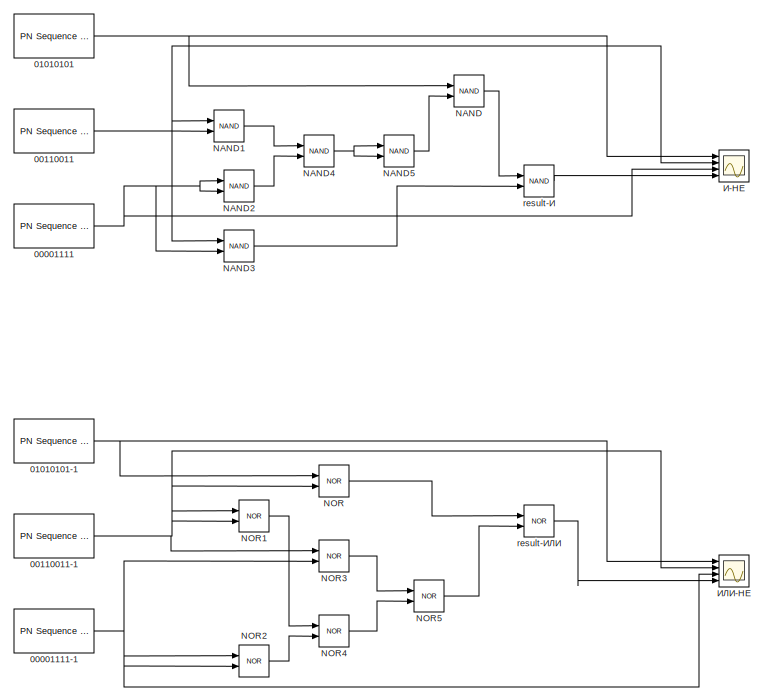
[diagram: root canvas - part 1/2, left side, full height]
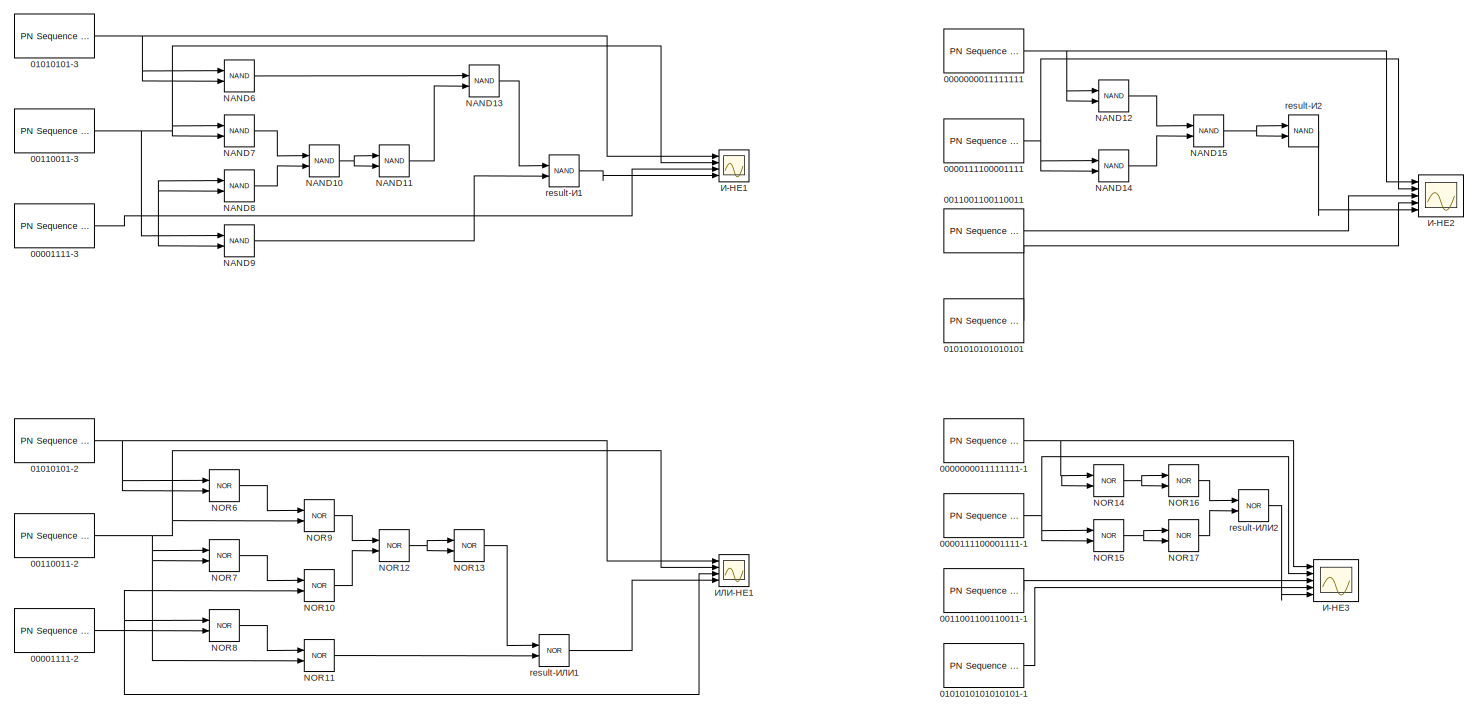
[diagram: root canvas - part 2/2, right side, full height]
MODEL slx_3a0d1bac1cae
KIND model
CONFIG AbsTol = auto
CONFIG EnableMultiTasking = off
CONFIG FixedStep = auto
CONFIG MaxStep = auto
CONFIG MinStep = auto
CONFIG RelTol = 1e-3
CONFIG SampleTimeConstraint = Unconstrained
CONFIG Solver = VariableStepAuto
CONFIG SolverName = VariableStepAuto
CONFIG StartTime = 0.0
CONFIG StopTime = 16
BLOCK [Reference] 0000000011111111  REF=commseqgen3/PN Sequence
Generator
  Ports = [0, 1]
  SourceBlock = commseqgen3/PN Sequence\nGenerator
  SourceProductBaseCode = CM
  SourceType = PN Sequence Generator
BLOCK [Reference] 0000000011111111-1  REF=commseqgen3/PN Sequence
Generator
  Ports = [0, 1]
  SourceBlock = commseqgen3/PN Sequence\nGenerator
  SourceProductBaseCode = CM
  SourceType = PN Sequence Generator
BLOCK [Reference] 00001111  REF=commseqgen3/PN Sequence
Generator
  Ports = [0, 1]
  SourceBlock = commseqgen3/PN Sequence\nGenerator
  SourceProductBaseCode = CM
  SourceType = PN Sequence Generator
BLOCK [Reference] 00001111-1  REF=commseqgen3/PN Sequence
Generator
  Ports = [0, 1]
  SourceBlock = commseqgen3/PN Sequence\nGenerator
  SourceProductBaseCode = CM
  SourceType = PN Sequence Generator
BLOCK [Reference] 00001111-2  REF=commseqgen3/PN Sequence
Generator
  Ports = [0, 1]
  SourceBlock = commseqgen3/PN Sequence\nGenerator
  SourceProductBaseCode = CM
  SourceType = PN Sequence Generator
BLOCK [Reference] 00001111-3  REF=commseqgen3/PN Sequence
Generator
  Ports = [0, 1]
  SourceBlock = commseqgen3/PN Sequence\nGenerator
  SourceProductBaseCode = CM
  SourceType = PN Sequence Generator
BLOCK [Reference] 0000111100001111  REF=commseqgen3/PN Sequence
Generator
  Ports = [0, 1]
  SourceBlock = commseqgen3/PN Sequence\nGenerator
  SourceProductBaseCode = CM
  SourceType = PN Sequence Generator
BLOCK [Reference] 0000111100001111-1  REF=commseqgen3/PN Sequence
Generator
  Ports = [0, 1]
  SourceBlock = commseqgen3/PN Sequence\nGenerator
  SourceProductBaseCode = CM
  SourceType = PN Sequence Generator
BLOCK [Reference] 00110011  REF=commseqgen3/PN Sequence
Generator
  Ports = [0, 1]
  SourceBlock = commseqgen3/PN Sequence\nGenerator
  SourceProductBaseCode = CM
  SourceType = PN Sequence Generator
BLOCK [Reference] 00110011-1  REF=commseqgen3/PN Sequence
Generator
  Ports = [0, 1]
  SourceBlock = commseqgen3/PN Sequence\nGenerator
  SourceProductBaseCode = CM
  SourceType = PN Sequence Generator
BLOCK [Reference] 00110011-2  REF=commseqgen3/PN Sequence
Generator
  Ports = [0, 1]
  SourceBlock = commseqgen3/PN Sequence\nGenerator
  SourceProductBaseCode = CM
  SourceType = PN Sequence Generator
BLOCK [Reference] 00110011-3  REF=commseqgen3/PN Sequence
Generator
  Ports = [0, 1]
  SourceBlock = commseqgen3/PN Sequence\nGenerator
  SourceProductBaseCode = CM
  SourceType = PN Sequence Generator
BLOCK [Reference] 0011001100110011  REF=commseqgen3/PN Sequence
Generator
  Ports = [0, 1]
  SourceBlock = commseqgen3/PN Sequence\nGenerator
  SourceProductBaseCode = CM
  SourceType = PN Sequence Generator
BLOCK [Reference] 0011001100110011-1  REF=commseqgen3/PN Sequence
Generator
  Ports = [0, 1]
  SourceBlock = commseqgen3/PN Sequence\nGenerator
  SourceProductBaseCode = CM
  SourceType = PN Sequence Generator
BLOCK [Reference] 01010101  REF=commseqgen3/PN Sequence
Generator
  Ports = [0, 1]
  SourceBlock = commseqgen3/PN Sequence\nGenerator
  SourceProductBaseCode = CM
  SourceType = PN Sequence Generator
BLOCK [Reference] 01010101-1  REF=commseqgen3/PN Sequence
Generator
  Ports = [0, 1]
  SourceBlock = commseqgen3/PN Sequence\nGenerator
  SourceProductBaseCode = CM
  SourceType = PN Sequence Generator
BLOCK [Reference] 01010101-2  REF=commseqgen3/PN Sequence
Generator
  Ports = [0, 1]
  SourceBlock = commseqgen3/PN Sequence\nGenerator
  SourceProductBaseCode = CM
  SourceType = PN Sequence Generator
BLOCK [Reference] 01010101-3  REF=commseqgen3/PN Sequence
Generator
  Ports = [0, 1]
  SourceBlock = commseqgen3/PN Sequence\nGenerator
  SourceProductBaseCode = CM
  SourceType = PN Sequence Generator
BLOCK [Reference] 0101010101010101  REF=commseqgen3/PN Sequence
Generator
  Ports = [0, 1]
  SourceBlock = commseqgen3/PN Sequence\nGenerator
  SourceProductBaseCode = CM
  SourceType = PN Sequence Generator
BLOCK [Reference] 0101010101010101-1  REF=commseqgen3/PN Sequence
Generator
  Ports = [0, 1]
  SourceBlock = commseqgen3/PN Sequence\nGenerator
  SourceProductBaseCode = CM
  SourceType = PN Sequence Generator
BLOCK [Logic] NAND
  AllPortsSameDT = off
  IconShape = distinctive
  Operator = NAND
  OutDataTypeStr = boolean
  Ports = [2, 1]
BLOCK [Logic] NAND1
  AllPortsSameDT = off
  IconShape = distinctive
  Operator = NAND
  OutDataTypeStr = boolean
  Ports = [2, 1]
BLOCK [Logic] NAND10
  AllPortsSameDT = off
  IconShape = distinctive
  Operator = NAND
  OutDataTypeStr = boolean
  Ports = [2, 1]
BLOCK [Logic] NAND11
  AllPortsSameDT = off
  IconShape = distinctive
  Operator = NAND
  OutDataTypeStr = boolean
  Ports = [2, 1]
BLOCK [Logic] NAND12
  AllPortsSameDT = off
  IconShape = distinctive
  Operator = NAND
  OutDataTypeStr = boolean
  Ports = [2, 1]
BLOCK [Logic] NAND13
  AllPortsSameDT = off
  IconShape = distinctive
  Operator = NAND
  OutDataTypeStr = boolean
  Ports = [2, 1]
BLOCK [Logic] NAND14
  AllPortsSameDT = off
  IconShape = distinctive
  Operator = NAND
  OutDataTypeStr = boolean
  Ports = [2, 1]
BLOCK [Logic] NAND15
  AllPortsSameDT = off
  IconShape = distinctive
  Operator = NAND
  OutDataTypeStr = boolean
  Ports = [2, 1]
BLOCK [Logic] NAND2
  AllPortsSameDT = off
  IconShape = distinctive
  Operator = NAND
  OutDataTypeStr = boolean
  Ports = [2, 1]
BLOCK [Logic] NAND3
  AllPortsSameDT = off
  IconShape = distinctive
  Operator = NAND
  OutDataTypeStr = boolean
  Ports = [2, 1]
BLOCK [Logic] NAND4
  AllPortsSameDT = off
  IconShape = distinctive
  Operator = NAND
  OutDataTypeStr = boolean
  Ports = [2, 1]
BLOCK [Logic] NAND5
  AllPortsSameDT = off
  IconShape = distinctive
  Operator = NAND
  OutDataTypeStr = boolean
  Ports = [2, 1]
BLOCK [Logic] NAND6
  AllPortsSameDT = off
  IconShape = distinctive
  Operator = NAND
  OutDataTypeStr = boolean
  Ports = [2, 1]
BLOCK [Logic] NAND7
  AllPortsSameDT = off
  IconShape = distinctive
  Operator = NAND
  OutDataTypeStr = boolean
  Ports = [2, 1]
BLOCK [Logic] NAND8
  AllPortsSameDT = off
  IconShape = distinctive
  Operator = NAND
  OutDataTypeStr = boolean
  Ports = [2, 1]
BLOCK [Logic] NAND9
  AllPortsSameDT = off
  IconShape = distinctive
  Operator = NAND
  OutDataTypeStr = boolean
  Ports = [2, 1]
BLOCK [Logic] NOR
  AllPortsSameDT = off
  IconShape = distinctive
  Operator = NOR
  OutDataTypeStr = boolean
  Ports = [2, 1]
BLOCK [Logic] NOR1
  AllPortsSameDT = off
  IconShape = distinctive
  Operator = NOR
  OutDataTypeStr = boolean
  Ports = [2, 1]
BLOCK [Logic] NOR10
  AllPortsSameDT = off
  IconShape = distinctive
  Operator = NOR
  OutDataTypeStr = boolean
  Ports = [2, 1]
BLOCK [Logic] NOR11
  AllPortsSameDT = off
  IconShape = distinctive
  Operator = NOR
  OutDataTypeStr = boolean
  Ports = [2, 1]
BLOCK [Logic] NOR12
  AllPortsSameDT = off
  IconShape = distinctive
  Operator = NOR
  OutDataTypeStr = boolean
  Ports = [2, 1]
BLOCK [Logic] NOR13
  AllPortsSameDT = off
  IconShape = distinctive
  Operator = NOR
  OutDataTypeStr = boolean
  Ports = [2, 1]
BLOCK [Logic] NOR14
  AllPortsSameDT = off
  IconShape = distinctive
  Operator = NOR
  OutDataTypeStr = boolean
  Ports = [2, 1]
BLOCK [Logic] NOR15
  AllPortsSameDT = off
  IconShape = distinctive
  Operator = NOR
  OutDataTypeStr = boolean
  Ports = [2, 1]
BLOCK [Logic] NOR16
  AllPortsSameDT = off
  IconShape = distinctive
  Operator = NOR
  OutDataTypeStr = boolean
  Ports = [2, 1]
BLOCK [Logic] NOR17
  AllPortsSameDT = off
  IconShape = distinctive
  Operator = NOR
  OutDataTypeStr = boolean
  Ports = [2, 1]
BLOCK [Logic] NOR2
  AllPortsSameDT = off
  IconShape = distinctive
  Operator = NOR
  OutDataTypeStr = boolean
  Ports = [2, 1]
BLOCK [Logic] NOR3
  AllPortsSameDT = off
  IconShape = distinctive
  Operator = NOR
  OutDataTypeStr = boolean
  Ports = [2, 1]
BLOCK [Logic] NOR4
  AllPortsSameDT = off
  IconShape = distinctive
  Operator = NOR
  OutDataTypeStr = boolean
  Ports = [2, 1]
BLOCK [Logic] NOR5
  AllPortsSameDT = off
  IconShape = distinctive
  Operator = NOR
  OutDataTypeStr = boolean
  Ports = [2, 1]
BLOCK [Logic] NOR6
  AllPortsSameDT = off
  IconShape = distinctive
  Operator = NOR
  OutDataTypeStr = boolean
  Ports = [2, 1]
BLOCK [Logic] NOR7
  AllPortsSameDT = off
  IconShape = distinctive
  Operator = NOR
  OutDataTypeStr = boolean
  Ports = [2, 1]
BLOCK [Logic] NOR8
  AllPortsSameDT = off
  IconShape = distinctive
  Operator = NOR
  OutDataTypeStr = boolean
  Ports = [2, 1]
BLOCK [Logic] NOR9
  AllPortsSameDT = off
  IconShape = distinctive
  Operator = NOR
  OutDataTypeStr = boolean
  Ports = [2, 1]
BLOCK [Logic] result-И
  AllPortsSameDT = off
  IconShape = distinctive
  Operator = NAND
  OutDataTypeStr = boolean
  Ports = [2, 1]
BLOCK [Logic] result-И1
  AllPortsSameDT = off
  IconShape = distinctive
  Operator = NAND
  OutDataTypeStr = boolean
  Ports = [2, 1]
BLOCK [Logic] result-И2
  AllPortsSameDT = off
  IconShape = distinctive
  Operator = NAND
  OutDataTypeStr = boolean
  Ports = [2, 1]
BLOCK [Logic] result-ИЛИ
  AllPortsSameDT = off
  IconShape = distinctive
  Operator = NOR
  OutDataTypeStr = boolean
  Ports = [2, 1]
BLOCK [Logic] result-ИЛИ1
  AllPortsSameDT = off
  IconShape = distinctive
  Operator = NOR
  OutDataTypeStr = boolean
  Ports = [2, 1]
BLOCK [Logic] result-ИЛИ2
  AllPortsSameDT = off
  IconShape = distinctive
  Operator = NOR
  OutDataTypeStr = boolean
  Ports = [2, 1]
BLOCK [Scope] И-НЕ
  Floating = off
  NumInputPorts = 4
  Ports = [4]
  ScopeSpecificationString = Simulink.scopes.TimeScopeBlockCfg('CurrentConfiguration', extmgr.ConfigurationSet(extmgr.Configuration('Core','General UI',true,'FigureColor',[1 1 1]),extmgr.Configuration('Core','Source UI',true),extmgr.Configuration('Sources','WiredSimulink',true),extmgr.Configuration('Visuals','Time Domain',true,'TimeAxisLabels','All','SerializedDisplays',{struct('MinYLimReal','-0.125','MaxYLimReal','1.125','YL...<+4009ch>
BLOCK [Scope] И-НЕ1
  Floating = off
  NumInputPorts = 4
  Ports = [4]
  ScopeSpecificationString = Simulink.scopes.TimeScopeBlockCfg('CurrentConfiguration', extmgr.ConfigurationSet(extmgr.Configuration('Core','General UI',true,'FigureColor',[1 1 1]),extmgr.Configuration('Core','Source UI',true),extmgr.Configuration('Sources','WiredSimulink',true,'DataLoggingVariableName','ScopeData2'),extmgr.Configuration('Visuals','Time Domain',true,'TimeAxisLabels','All','SerializedDisplays',{struct('MinYLimR...<+3945ch>
BLOCK [Scope] И-НЕ2
  Floating = off
  NumInputPorts = 5
  Ports = [5]
  ScopeSpecificationString = Simulink.scopes.TimeScopeBlockCfg('CurrentConfiguration', extmgr.ConfigurationSet(extmgr.Configuration('Core','General UI',true,'FigureColor',[1 1 1]),extmgr.Configuration('Core','Source UI',true),extmgr.Configuration('Sources','WiredSimulink',true,'DataLoggingVariableName','ScopeData4'),extmgr.Configuration('Visuals','Time Domain',true,'TimeAxisLabels','All','SerializedDisplays',{struct('MinYLimR...<+5510ch>
BLOCK [Scope] И-НЕ3
  Floating = off
  NumInputPorts = 5
  Ports = [5]
  ScopeSpecificationString = Simulink.scopes.TimeScopeBlockCfg('CurrentConfiguration', extmgr.ConfigurationSet(extmgr.Configuration('Core','General UI',true,'FigureColor',[1 1 1]),extmgr.Configuration('Core','Source UI',true),extmgr.Configuration('Sources','WiredSimulink',true,'DataLoggingVariableName','ScopeData5'),extmgr.Configuration('Visuals','Time Domain',true,'TimeAxisLabels','All','SerializedDisplays',{struct('MinYLimR...<+5520ch>
BLOCK [Scope] ИЛИ-НЕ
  Floating = off
  NumInputPorts = 4
  Ports = [4]
  ScopeSpecificationString = Simulink.scopes.TimeScopeBlockCfg('CurrentConfiguration', extmgr.ConfigurationSet(extmgr.Configuration('Core','General UI',true,'FigureColor',[1 1 1]),extmgr.Configuration('Core','Source UI',true),extmgr.Configuration('Sources','WiredSimulink',true,'DataLoggingVariableName','ScopeData1'),extmgr.Configuration('Visuals','Time Domain',true,'TimeAxisLabels','All','SerializedDisplays',{struct('MinYLimR...<+4056ch>
BLOCK [Scope] ИЛИ-НЕ1
  Floating = off
  NumInputPorts = 4
  Ports = [4]
  ScopeSpecificationString = Simulink.scopes.TimeScopeBlockCfg('CurrentConfiguration', extmgr.ConfigurationSet(extmgr.Configuration('Core','General UI',true,'FigureColor',[1 1 1]),extmgr.Configuration('Core','Source UI',true),extmgr.Configuration('Sources','WiredSimulink',true,'DataLoggingVariableName','ScopeData3'),extmgr.Configuration('Visuals','Time Domain',true,'TimeAxisLabels','All','SerializedDisplays',{struct('MinYLimR...<+4057ch>
NET 0000000011111111-1:1 -> NOR14:1, NOR14:2, И-НЕ3:1
NET 0000000011111111:1 -> NAND12:1, NAND12:2, И-НЕ2:1
NET 00001111-1:1 -> NOR2:1, NOR2:2, NOR3:2, ИЛИ-НЕ:3
NET 00001111-2:1 -> NOR10:2, NOR8:1, NOR8:2, ИЛИ-НЕ1:3
NET 00001111-3:1 -> NAND8:1, NAND8:2, NAND9:2, И-НЕ1:3
NET 0000111100001111-1:1 -> NOR15:1, NOR15:2, И-НЕ3:2
NET 0000111100001111:1 -> NAND14:1, NAND14:2, И-НЕ2:2
NET 00001111:1 -> NAND2:1, NAND2:2, NAND3:2, И-НЕ:3
NET 00110011-1:1 -> NOR1:1, NOR1:2, NOR3:1, NOR:2, ИЛИ-НЕ:2
NET 00110011-2:1 -> NOR11:2, NOR7:1, NOR7:2, NOR9:2, ИЛИ-НЕ1:2
NET 00110011-3:1 -> NAND7:1, NAND7:2, NAND9:1, И-НЕ1:2
LINE 0011001100110011-1:1 -> И-НЕ3:3
LINE 0011001100110011:1 -> И-НЕ2:3
NET 00110011:1 -> NAND1:1, NAND1:2, NAND3:1, И-НЕ:2
NET 01010101-1:1 -> NOR:1, ИЛИ-НЕ:1
NET 01010101-2:1 -> NOR6:1, NOR6:2, ИЛИ-НЕ1:1
NET 01010101-3:1 -> NAND6:1, NAND6:2, И-НЕ1:1
LINE 0101010101010101-1:1 -> И-НЕ3:4
LINE 0101010101010101:1 -> И-НЕ2:4
NET 01010101:1 -> NAND:1, И-НЕ:1
NET NAND10:1 -> NAND11:1, NAND11:2
LINE NAND11:1 -> NAND13:2
LINE NAND12:1 -> NAND15:1
LINE NAND13:1 -> result-И1:1
LINE NAND14:1 -> NAND15:2
NET NAND15:1 -> result-И2:1, result-И2:2
LINE NAND1:1 -> NAND4:1
LINE NAND2:1 -> NAND4:2
LINE NAND3:1 -> result-И:2
NET NAND4:1 -> NAND5:1, NAND5:2
LINE NAND5:1 -> NAND:2
LINE NAND6:1 -> NAND13:1
LINE NAND7:1 -> NAND10:1
LINE NAND8:1 -> NAND10:2
LINE NAND9:1 -> result-И1:2
LINE NAND:1 -> result-И:1
LINE NOR10:1 -> NOR12:2
LINE NOR11:1 -> result-ИЛИ1:2
NET NOR12:1 -> NOR13:1, NOR13:2
LINE NOR13:1 -> result-ИЛИ1:1
NET NOR14:1 -> NOR16:1, NOR16:2
NET NOR15:1 -> NOR17:1, NOR17:2
LINE NOR16:1 -> result-ИЛИ2:1
LINE NOR17:1 -> result-ИЛИ2:2
LINE NOR1:1 -> NOR4:1
LINE NOR2:1 -> NOR4:2
LINE NOR3:1 -> NOR5:1
LINE NOR4:1 -> NOR5:2
LINE NOR5:1 -> result-ИЛИ:2
LINE NOR6:1 -> NOR9:1
LINE NOR7:1 -> NOR10:1
LINE NOR8:1 -> NOR11:1
LINE NOR9:1 -> NOR12:1
LINE NOR:1 -> result-ИЛИ:1
LINE result-И1:1 -> И-НЕ1:4
LINE result-И2:1 -> И-НЕ2:5
LINE result-И:1 -> И-НЕ:4
LINE result-ИЛИ1:1 -> ИЛИ-НЕ1:4
LINE result-ИЛИ2:1 -> И-НЕ3:5
LINE result-ИЛИ:1 -> ИЛИ-НЕ:4
note: NET lines group one-source signal fan-out (src -> all destinations, sorted); 1:1 wires keep LINE
